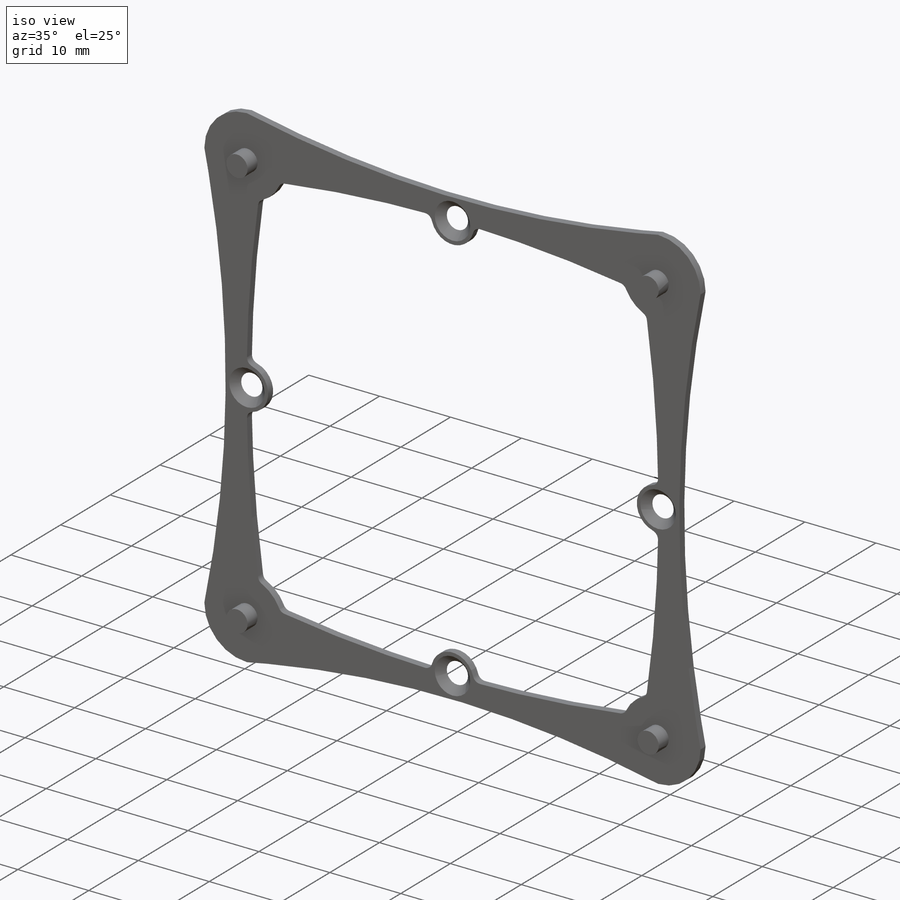
[diagram: iso view]
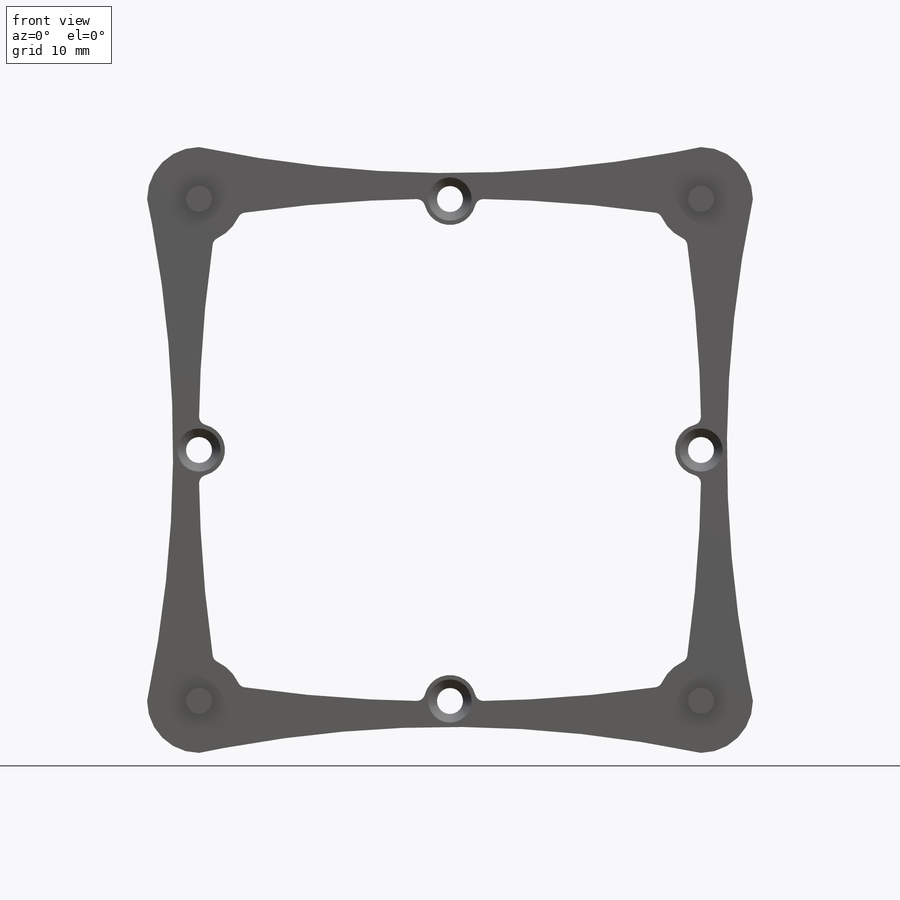
[diagram: front view]
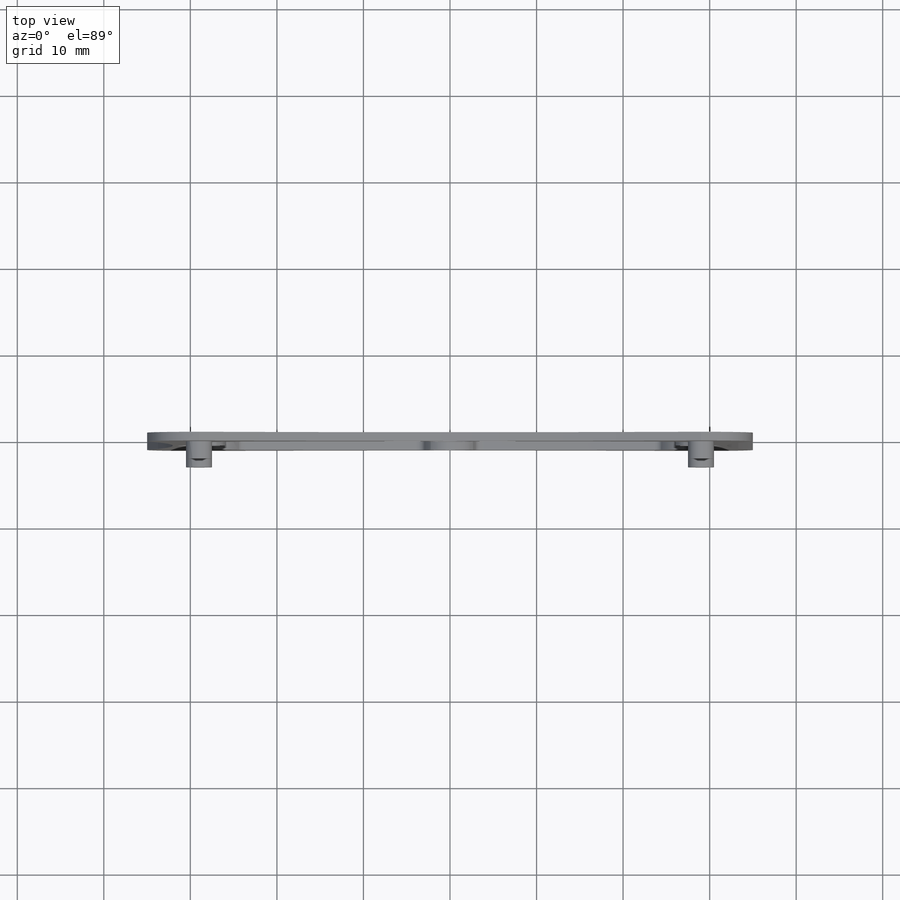
[diagram: top view]
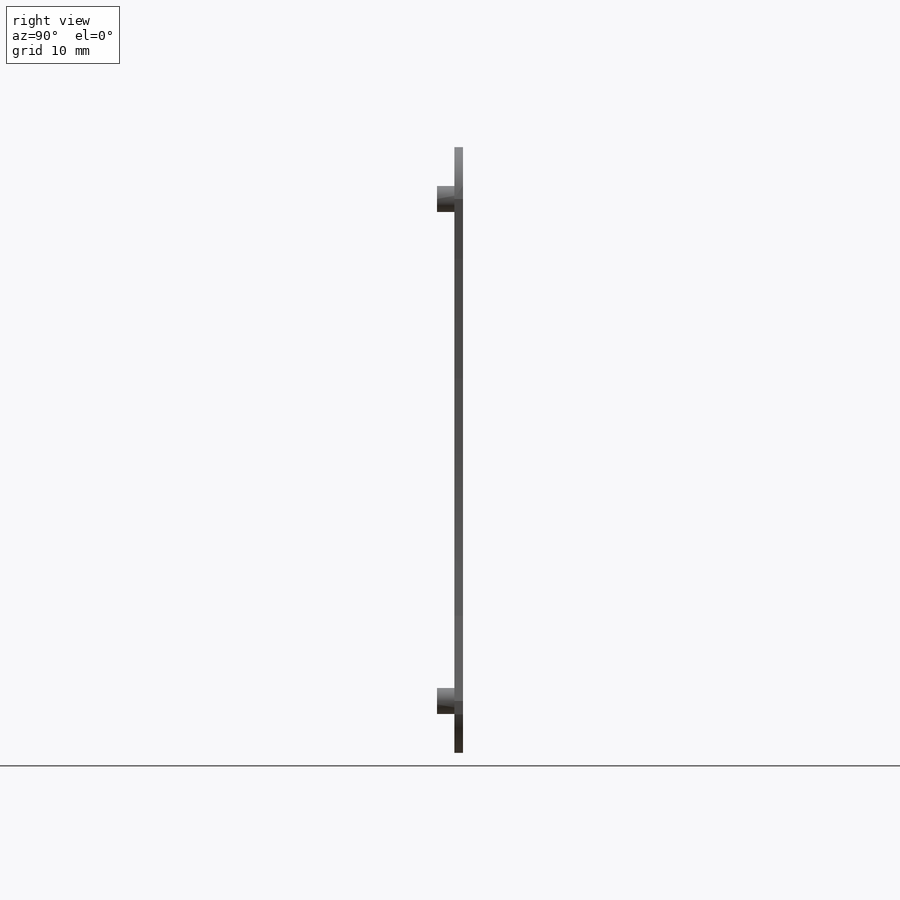
[diagram: right view]
SOLIDWORKS PART (.sldprt)
format: sldprt  version: not decoded by parser v0  size: 309,248 bytes
history: native  units: mm
features: plane x3, sketch x3, extrude x3, material x1, chamfer x1 (+9 scaffold rows collapsed)
feature tree (20):
  scaffold x9  (default folders/planes/origin — collapsed)
  material  "Malzeme <belirli değil>"
  plane  "Ön Düzlem"
  plane  "Üst Düzlem"
  plane  "Sağ Düzlem"
  sketch  "Çizim3"  dims[c1.D1=3.0mm c1.D2=3.0mm c1.D3=3.0mm c1.D4=3.0mm c1.D5=3.0mm c1.D6=3.0mm c2.D2=3.0mm c2.D4=6.0mm c2.D6=1.0mm c2.D7=1.0mm c2.D8=1.0mm c2.D9=1.0mm c3.D2=29.0mm c3.D3=4.0 c3.D5=4.0]
  extrude  "Yükseklik-Ekstrüzyon3"  Depth=1mm
  sketch  "Çizim4"  dims[D2=3.0mm D1=4.0]
  chamfer  "Pah1"  Distance=1mm Angle=45deg
  sketch  "Çizim5"  dims[D1=4.0]
  extrude  "Yükseklik-Ekstrüzyon5"  Depth=2mm
  extrude  "Yükseklik-Ekstrüzyon4"  Depth=2mm
decode coverage: 7 of 7 modeling features carry decoded parameters
note: suppression state not decoded; provenance and decode notes live in map.json
